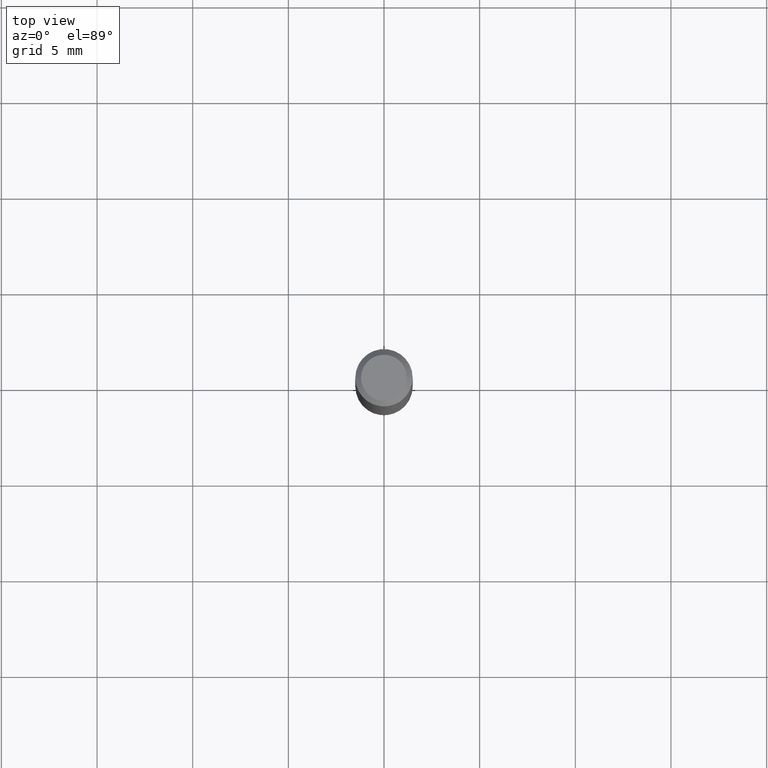
[diagram: clean part render]
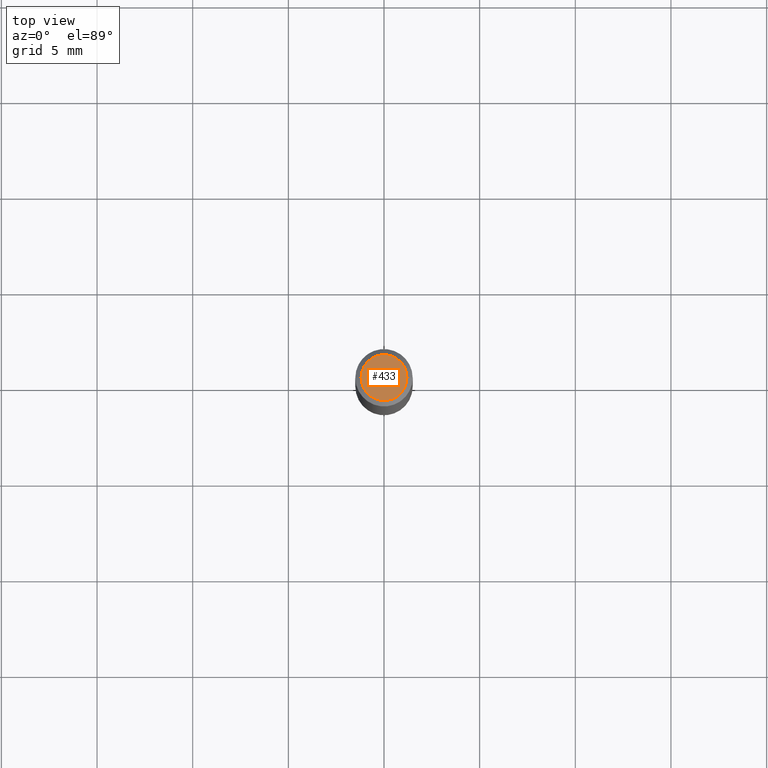
[diagram: same view with one face highlighted and labeled with its STEP entity id]
A machine part, top view. The second image highlights one B-rep face of the part: STEP entity #433.
In plain terms, the highlighted planar face has unit normal (0, -0, -1).
Its self-contained STEP definition (entity closure, byte-faithful):
#7 = PLANE ( 'NONE',  #131 ) ;
#31 = AXIS2_PLACEMENT_3D ( 'NONE', #140, #102, #396 ) ;
#36 = CIRCLE ( 'NONE', #31, 0.04724000000000000421 ) ;
#43 = EDGE_LOOP ( 'NONE', ( #56, #137 ) ) ;
#56 = ORIENTED_EDGE ( 'NONE', *, *, #114, .T. ) ;
#71 = AXIS2_PLACEMENT_3D ( 'NONE', #229, #72, #197 ) ;
#72 = DIRECTION ( 'NONE',  ( -2.445468806185136597E-29, 3.491481338843145583E-15, 1.000000000000000000 ) ) ;
#89 = DIRECTION ( 'NONE',  ( -1.000000000000000000, 6.982962677686265922E-15, -4.876176775795935793E-29 ) ) ;
#102 = DIRECTION ( 'NONE',  ( -2.445468806185136597E-29, 3.491481338843145583E-15, 1.000000000000000000 ) ) ;
#114 = EDGE_CURVE ( 'NONE', #444, #306, #36, .T. ) ;
#130 = DIRECTION ( 'NONE',  ( 2.438088387897960049E-29, -3.491481338843145188E-15, -1.000000000000000000 ) ) ;
#131 = AXIS2_PLACEMENT_3D ( 'NONE', #424, #130, #89 ) ;
#137 = ORIENTED_EDGE ( 'NONE', *, *, #413, .T. ) ;
#140 = CARTESIAN_POINT ( 'NONE',  ( 8.265746106709734507E-48, -1.180129479067563789E-33, -3.380025165646692144E-19 ) ) ;
#197 = DIRECTION ( 'NONE',  ( 1.000000000000000000, -6.982962677686266711E-15, 4.876185090822587894E-29 ) ) ;
#229 = CARTESIAN_POINT ( 'NONE',  ( 8.265746106709734507E-48, -1.180129479067563789E-33, -3.380025165646692144E-19 ) ) ;
#296 = CARTESIAN_POINT ( 'NONE',  ( 0.04724000000000000421, -3.852183633974369345E-16, -3.380025165621689721E-19 ) ) ;
#306 = VERTEX_POINT ( 'NONE', #296 ) ;
#342 = FACE_OUTER_BOUND ( 'NONE', #43, .T. ) ;
#396 = DIRECTION ( 'NONE',  ( 1.000000000000000000, -6.982962677686266711E-15, 4.876185090822587894E-29 ) ) ;
#413 = EDGE_CURVE ( 'NONE', #306, #444, #442, .T. ) ;
#418 = CARTESIAN_POINT ( 'NONE',  ( -0.04724000000000000421, 3.504923541997677355E-16, -3.380025165670481712E-19 ) ) ;
#424 = CARTESIAN_POINT ( 'NONE',  ( 4.132873053354867254E-48, -5.900647395337818946E-34, -1.690012582823346072E-19 ) ) ;
#433 = ADVANCED_FACE ( 'NONE', ( #342 ), #7, .F. ) ;
#442 = CIRCLE ( 'NONE', #71, 0.04724000000000000421 ) ;
#444 = VERTEX_POINT ( 'NONE', #418 ) ;